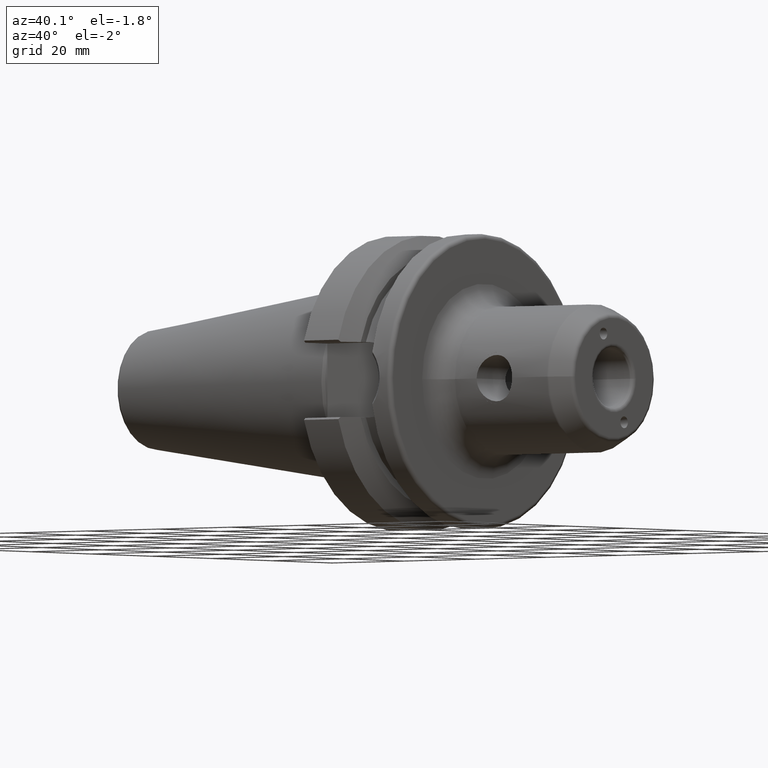
[diagram: clean part render]
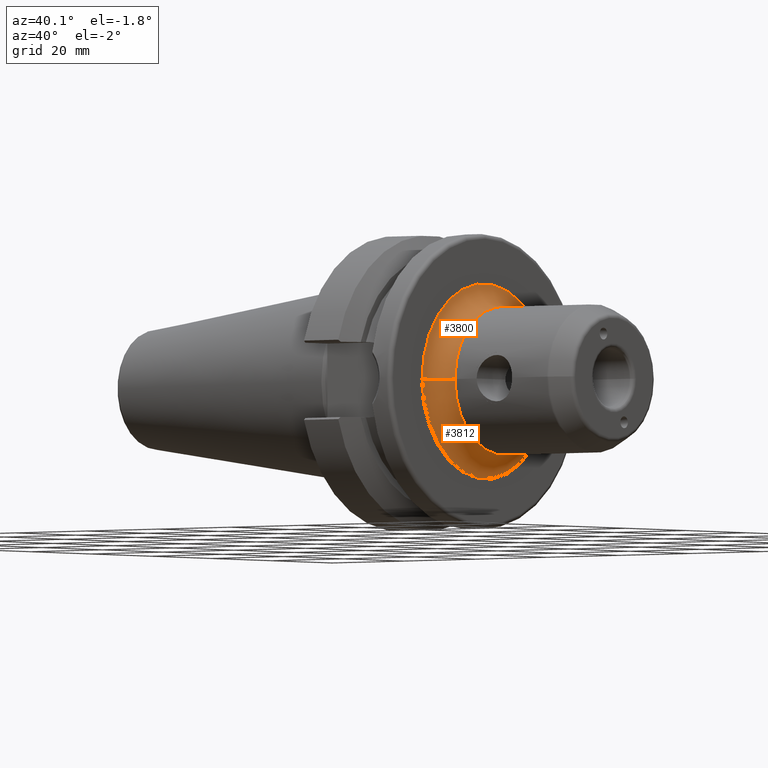
[diagram: same view with one multi-face feature highlighted, each face labeled with its STEP entity id]
A machine part, auxiliary view. The highlighted faces form ONE feature: a constant-radius fillet chain: 2 tangent blend faces with common blend radius 5 mm. The faces share edges in the B-rep.
Their STEP definitions:
[1] entity #3812 (Torus):
#1573=CARTESIAN_POINT('',(2.7E1,0.E0,0.E0));
#1574=DIRECTION('',(-1.E0,0.E0,0.E0));
#1575=DIRECTION('',(0.E0,1.E0,0.E0));
#1576=AXIS2_PLACEMENT_3D('',#1573,#1574,#1575);
#1583=CARTESIAN_POINT('',(3.2E1,-2.0875E1,0.E0));
#1584=DIRECTION('',(0.E0,0.E0,1.E0));
#1585=DIRECTION('',(0.E0,1.E0,0.E0));
#1586=AXIS2_PLACEMENT_3D('',#1583,#1584,#1585);
#1588=CARTESIAN_POINT('',(3.2E1,0.E0,0.E0));
#1589=DIRECTION('',(1.E0,0.E0,0.E0));
#1590=DIRECTION('',(0.E0,-1.E0,0.E0));
#1591=AXIS2_PLACEMENT_3D('',#1588,#1589,#1590);
#1593=CARTESIAN_POINT('',(3.2E1,2.0875E1,0.E0));
#1594=DIRECTION('',(0.E0,0.E0,-1.E0));
#1595=DIRECTION('',(0.E0,-1.E0,0.E0));
#1596=AXIS2_PLACEMENT_3D('',#1593,#1594,#1595);
#2203=CARTESIAN_POINT('',(3.2E1,-1.5875E1,0.E0));
#2204=CARTESIAN_POINT('',(3.2E1,1.5875E1,0.E0));
#2205=VERTEX_POINT('',#2203);
#2206=VERTEX_POINT('',#2204);
#2207=CARTESIAN_POINT('',(2.7E1,-2.0875E1,0.E0));
#2208=CARTESIAN_POINT('',(2.7E1,2.0875E1,0.E0));
#2209=VERTEX_POINT('',#2207);
#2210=VERTEX_POINT('',#2208);
#3801=CARTESIAN_POINT('',(3.2E1,0.E0,0.E0));
#3802=DIRECTION('',(-1.E0,0.E0,0.E0));
#3803=DIRECTION('',(0.E0,-1.E0,0.E0));
#3804=AXIS2_PLACEMENT_3D('',#3801,#3802,#3803);
#3805=TOROIDAL_SURFACE('',#3804,2.0875E1,5.E0);
#3806=ORIENTED_EDGE('',*,*,#3782,.T.);
#3807=ORIENTED_EDGE('',*,*,#3796,.F.);
#3808=ORIENTED_EDGE('',*,*,#2724,.T.);
#3809=ORIENTED_EDGE('',*,*,#3793,.T.);
#3810=EDGE_LOOP('',(#3806,#3807,#3808,#3809));
#3811=FACE_OUTER_BOUND('',#3810,.F.);
#3812=ADVANCED_FACE('',(#3811),#3805,.F.);
#1577=CIRCLE('',#1576,2.0875E1);
#1587=CIRCLE('',#1586,5.E0);
#1592=CIRCLE('',#1591,1.5875E1);
#1597=CIRCLE('',#1596,5.E0);
#2724=EDGE_CURVE('',#2205,#2206,#1592,.T.);
#3782=EDGE_CURVE('',#2210,#2209,#1577,.T.);
#3793=EDGE_CURVE('',#2206,#2210,#1597,.T.);
#3796=EDGE_CURVE('',#2205,#2209,#1587,.T.);
[2] entity #3800 (Torus):
#1568=CARTESIAN_POINT('',(2.7E1,0.E0,0.E0));
#1569=DIRECTION('',(-1.E0,0.E0,0.E0));
#1570=DIRECTION('',(0.E0,-1.E0,0.E0));
#1571=AXIS2_PLACEMENT_3D('',#1568,#1569,#1570);
#1578=CARTESIAN_POINT('',(3.2E1,0.E0,0.E0));
#1579=DIRECTION('',(-1.E0,0.E0,0.E0));
#1580=DIRECTION('',(0.E0,-1.E0,0.E0));
#1581=AXIS2_PLACEMENT_3D('',#1578,#1579,#1580);
#1583=CARTESIAN_POINT('',(3.2E1,-2.0875E1,0.E0));
#1584=DIRECTION('',(0.E0,0.E0,1.E0));
#1585=DIRECTION('',(0.E0,1.E0,0.E0));
#1586=AXIS2_PLACEMENT_3D('',#1583,#1584,#1585);
#1593=CARTESIAN_POINT('',(3.2E1,2.0875E1,0.E0));
#1594=DIRECTION('',(0.E0,0.E0,-1.E0));
#1595=DIRECTION('',(0.E0,-1.E0,0.E0));
#1596=AXIS2_PLACEMENT_3D('',#1593,#1594,#1595);
#2203=CARTESIAN_POINT('',(3.2E1,-1.5875E1,0.E0));
#2204=CARTESIAN_POINT('',(3.2E1,1.5875E1,0.E0));
#2205=VERTEX_POINT('',#2203);
#2206=VERTEX_POINT('',#2204);
#2207=CARTESIAN_POINT('',(2.7E1,-2.0875E1,0.E0));
#2208=CARTESIAN_POINT('',(2.7E1,2.0875E1,0.E0));
#2209=VERTEX_POINT('',#2207);
#2210=VERTEX_POINT('',#2208);
#3787=CARTESIAN_POINT('',(3.2E1,0.E0,0.E0));
#3788=DIRECTION('',(-1.E0,0.E0,0.E0));
#3789=DIRECTION('',(0.E0,-1.E0,0.E0));
#3790=AXIS2_PLACEMENT_3D('',#3787,#3788,#3789);
#3791=TOROIDAL_SURFACE('',#3790,2.0875E1,5.E0);
#3792=ORIENTED_EDGE('',*,*,#3780,.T.);
#3794=ORIENTED_EDGE('',*,*,#3793,.F.);
#3795=ORIENTED_EDGE('',*,*,#2762,.F.);
#3797=ORIENTED_EDGE('',*,*,#3796,.T.);
#3798=EDGE_LOOP('',(#3792,#3794,#3795,#3797));
#3799=FACE_OUTER_BOUND('',#3798,.F.);
#3800=ADVANCED_FACE('',(#3799),#3791,.F.);
#1572=CIRCLE('',#1571,2.0875E1);
#1582=CIRCLE('',#1581,1.5875E1);
#1587=CIRCLE('',#1586,5.E0);
#1597=CIRCLE('',#1596,5.E0);
#2762=EDGE_CURVE('',#2205,#2206,#1582,.T.);
#3780=EDGE_CURVE('',#2209,#2210,#1572,.T.);
#3793=EDGE_CURVE('',#2206,#2210,#1597,.T.);
#3796=EDGE_CURVE('',#2205,#2209,#1587,.T.);